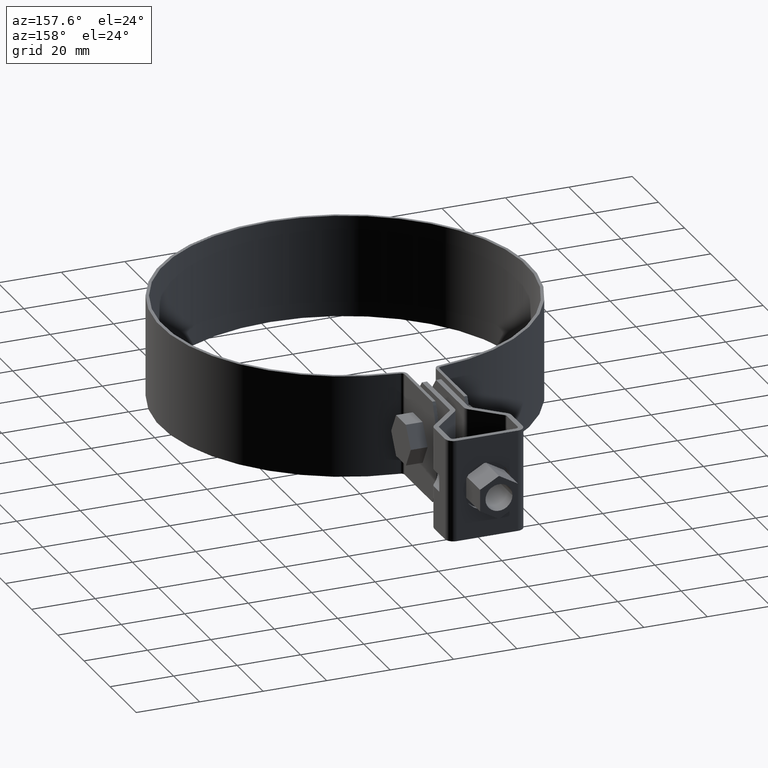
[diagram: clean part render]
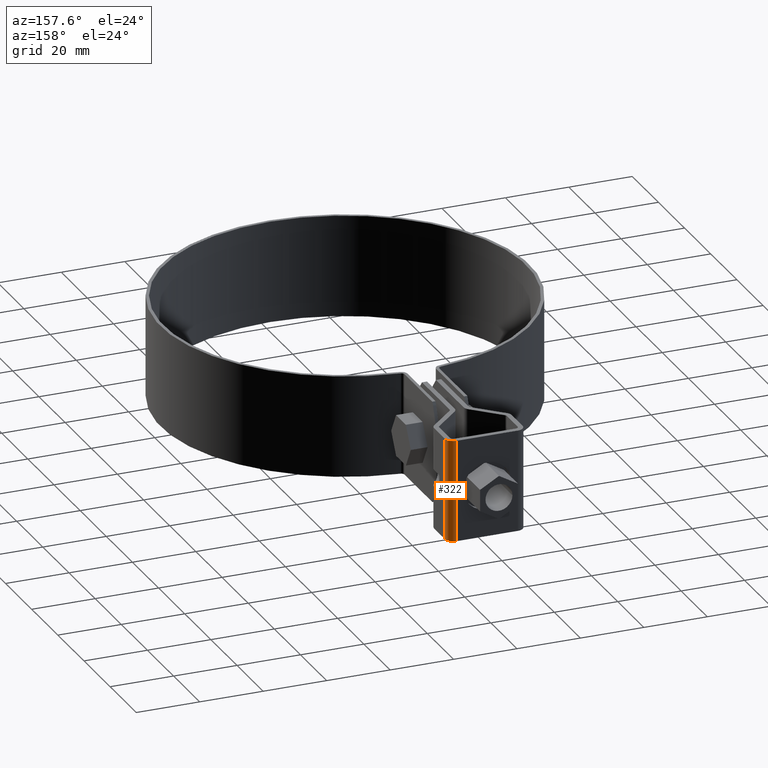
[diagram: same view with one face highlighted and labeled with its STEP entity id]
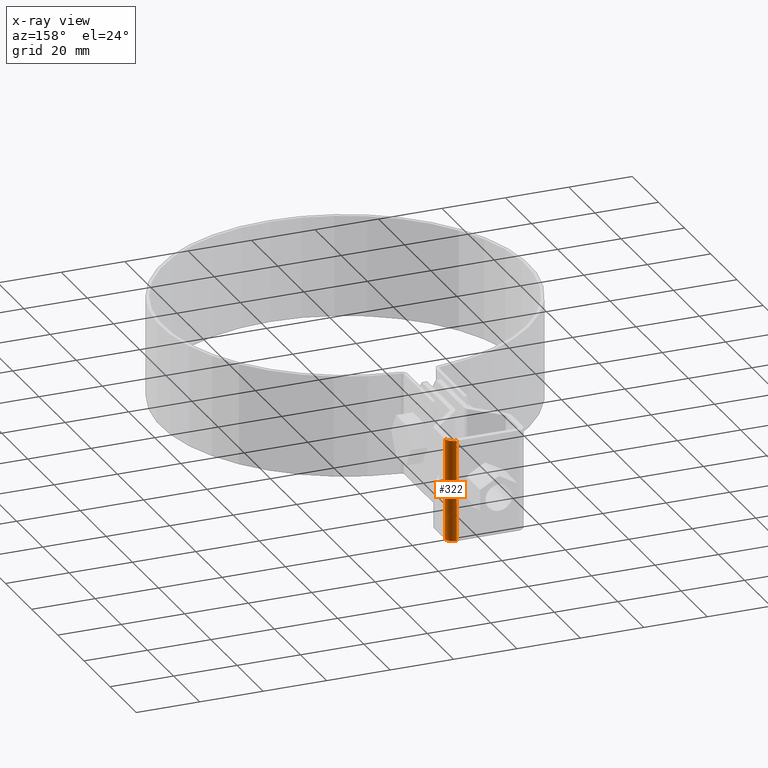
[diagram: x-ray of the same camera — body ghosted, the highlighted face saturated]
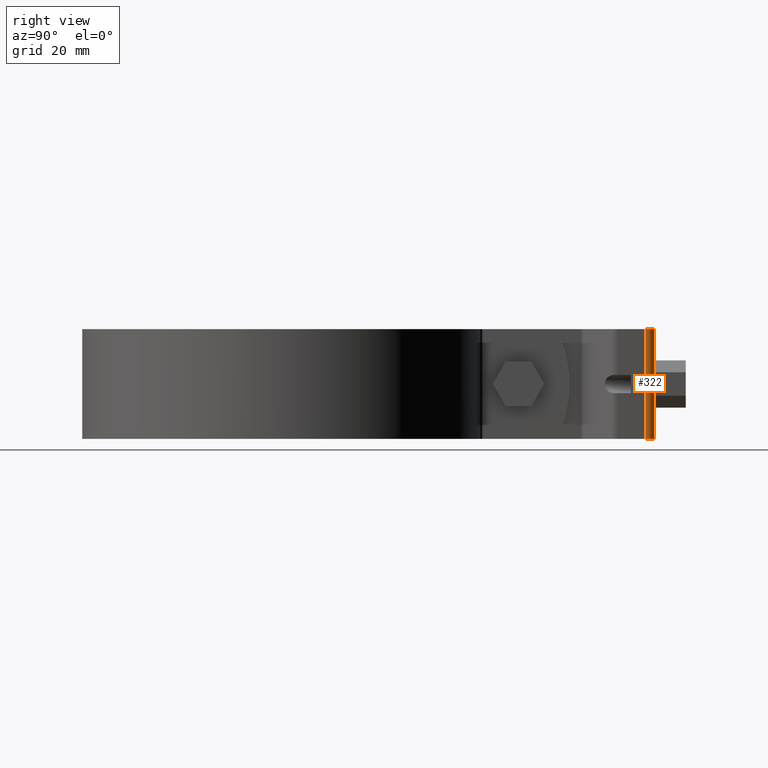
[diagram: same view with one face highlighted and labeled with its STEP entity id]
A machine part, auxiliary view. The second image highlights one B-rep face of the part: STEP entity #322.
The next image is the same camera in x-ray: the body ghosted, the highlighted face saturated — about 0% of this face is hidden behind the body in this view.
A second angle (right view) of the same face is appended — the face is thin or edge-on in the first view.
In plain terms, the highlighted cylindrical surface (edge-blend (fillet) strip) has radius 2.6 mm, axis along (0, 0, -1).
Its self-contained STEP definition (entity closure, byte-faithful):
#322 = ADVANCED_FACE( '', ( #507 ), #508, .T. );
#507 = FACE_OUTER_BOUND( '', #763, .T. );
#508 = CYLINDRICAL_SURFACE( '', #764, 2.59999999999999 );
#763 = EDGE_LOOP( '', ( #1314, #1315, #1316, #1317 ) );
#764 = AXIS2_PLACEMENT_3D( '', #1318, #1319, #1320 );
#1314 = ORIENTED_EDGE( '', *, *, #1952, .T. );
#1315 = ORIENTED_EDGE( '', *, *, #1953, .T. );
#1316 = ORIENTED_EDGE( '', *, *, #1954, .F. );
#1317 = ORIENTED_EDGE( '', *, *, #1955, .F. );
#1318 = CARTESIAN_POINT( '', ( 9.65000000000020, 106.122559184213, -12.4999999999793 ) );
#1319 = DIRECTION( '', ( 3.75282687687682E-015, 1.42719169815570E-013, -1.00000000000000 ) );
#1320 = DIRECTION( '', ( 3.63293213424916E-015, 1.00000000000000, 1.42719169815570E-013 ) );
#1952 = EDGE_CURVE( '', #2335, #2336, #2337, .T. );
#1953 = EDGE_CURVE( '', #2336, #2338, #2339, .T. );
#1954 = EDGE_CURVE( '', #2340, #2338, #2341, .T. );
#1955 = EDGE_CURVE( '', #2335, #2340, #2342, .T. );
#2335 = VERTEX_POINT( '', #2967 );
#2336 = VERTEX_POINT( '', #2968 );
#2337 = LINE( '', #2969, #2970 );
#2338 = VERTEX_POINT( '', #2971 );
#2339 = CIRCLE( '', #2972, 2.59999999999999 );
#2340 = VERTEX_POINT( '', #2973 );
#2341 = LINE( '', #2974, #2975 );
#2342 = CIRCLE( '', #2976, 2.59999999999999 );
#2967 = CARTESIAN_POINT( '', ( 9.65000000000021, 108.722559184214, -15.9999999999789 ) );
#2968 = CARTESIAN_POINT( '', ( 9.65000000000009, 108.722559184209, 16.0000000000211 ) );
#2969 = CARTESIAN_POINT( '', ( 9.65000000000020, 108.722559184213, -12.4999999999789 ) );
#2970 = VECTOR( '', #3607, 1000.00000000000 );
#2971 = CARTESIAN_POINT( '', ( 12.2500000000001, 106.122559184209, 16.0000000000208 ) );
#2972 = AXIS2_PLACEMENT_3D( '', #3608, #3609, #3610 );
#2973 = CARTESIAN_POINT( '', ( 12.2500000000002, 106.122559184214, -15.9999999999792 ) );
#2974 = CARTESIAN_POINT( '', ( 12.2500000000002, 106.122559184213, -12.4999999999792 ) );
#2975 = VECTOR( '', #3611, 1000.00000000000 );
#2976 = AXIS2_PLACEMENT_3D( '', #3612, #3613, #3614 );
#3607 = DIRECTION( '', ( -3.75282687687682E-015, -1.42719169815570E-013, 1.00000000000000 ) );
#3608 = CARTESIAN_POINT( '', ( 9.65000000000008, 106.122559184209, 16.0000000000208 ) );
#3609 = DIRECTION( '', ( 3.80897949638115E-015, 1.42601786878375E-013, -1.00000000000000 ) );
#3610 = DIRECTION( '', ( 1.00000000000000, -3.74395443671221E-015, 3.80897949638062E-015 ) );
#3611 = DIRECTION( '', ( -3.75282687687682E-015, -1.42719169815570E-013, 1.00000000000000 ) );
#3612 = CARTESIAN_POINT( '', ( 9.65000000000020, 106.122559184214, -15.9999999999792 ) );
#3613 = DIRECTION( '', ( 3.80897949638115E-015, 1.42601786878375E-013, -1.00000000000000 ) );
#3614 = DIRECTION( '', ( 1.00000000000000, -3.74395443671221E-015, 3.80897949638062E-015 ) );